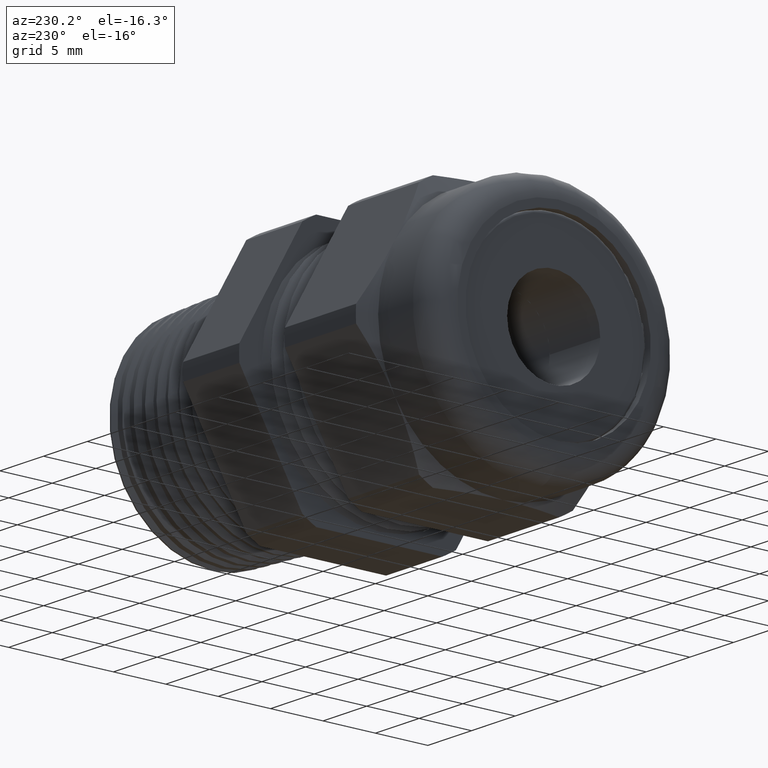
[diagram: clean part render]
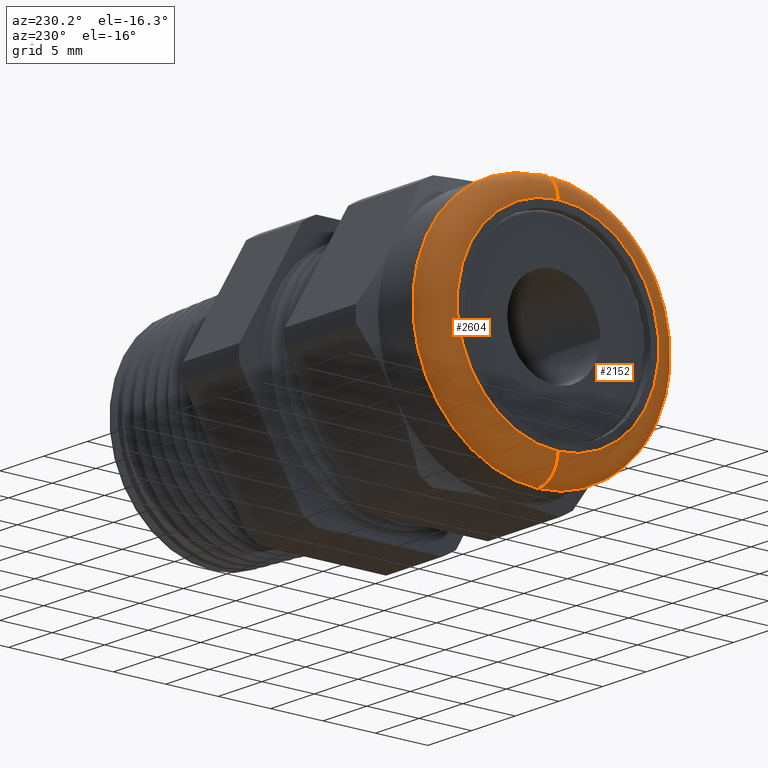
[diagram: same view with one multi-face feature highlighted, each face labeled with its STEP entity id]
A machine part, auxiliary view. The highlighted faces form ONE feature: a constant-radius fillet chain: 2 tangent blend faces with common blend radius 2.3216 mm. The faces share edges in the B-rep.
Their STEP definitions:
[1] entity #2152 (Torus):
#53 = EDGE_CURVE ( 'NONE', #3774, #2603, #2917, .T. ) ;
#1001 = CARTESIAN_POINT ( 'NONE',  ( -1.060000000000000100, 5.196176368782216900E-017, 0.3785999999999997700 ) ) ;
#1701 = CARTESIAN_POINT ( 'NONE',  ( -0.9686000000000000200, 0.0000000000000000000, 0.4699999999999997500 ) ) ;
#1702 = CARTESIAN_POINT ( 'NONE',  ( -0.9686000000000000200, 5.755839955992557200E-017, -0.4699999999999997500 ) ) ;
#1738 = DIRECTION ( 'NONE',  ( 0.0000000000000000000, 1.224646799147353000E-016, 1.000000000000000000 ) ) ;
#1739 = DIRECTION ( 'NONE',  ( 0.0000000000000000000, 1.000000000000000000, -1.224646799147353200E-016 ) ) ;
#1740 = CARTESIAN_POINT ( 'NONE',  ( -0.9686000000000000200, 4.636512781571876600E-017, 0.3785999999999997700 ) ) ;
#1741 = AXIS2_PLACEMENT_3D ( 'NONE', #1740, #1739, #1738 ) ;
#1742 = CIRCLE ( 'NONE', #1741, 0.09140000000000000900 ) ;
#1743 = CARTESIAN_POINT ( 'NONE',  ( -1.060000000000000100, 0.0000000000000000000, -0.3785999999999997700 ) ) ;
#1749 = DIRECTION ( 'NONE',  ( 0.0000000000000000000, 0.0000000000000000000, -1.000000000000000000 ) ) ;
#1750 = DIRECTION ( 'NONE',  ( 0.0000000000000000000, -1.000000000000000000, 0.0000000000000000000 ) ) ;
#1751 = CARTESIAN_POINT ( 'NONE',  ( -0.9686000000000000200, 0.0000000000000000000, -0.3785999999999997700 ) ) ;
#1752 = AXIS2_PLACEMENT_3D ( 'NONE', #1751, #1750, #1749 ) ;
#1753 = CIRCLE ( 'NONE', #1752, 0.09140000000000000900 ) ;
#2062 = EDGE_CURVE ( 'NONE', #3762, #3761, #3401, .T. ) ;
#2138 = ORIENTED_EDGE ( 'NONE', *, *, #3769, .T. ) ;
#2139 = EDGE_LOOP ( 'NONE', ( #2143, #2140, #2138, #2142 ) ) ;
#2140 = ORIENTED_EDGE ( 'NONE', *, *, #53, .F. ) ;
#2142 = ORIENTED_EDGE ( 'NONE', *, *, #2062, .F. ) ;
#2143 = ORIENTED_EDGE ( 'NONE', *, *, #3775, .F. ) ;
#2152 = ADVANCED_FACE ( 'NONE', ( #3550 ), #3549, .T. ) ;
#2603 = VERTEX_POINT ( 'NONE', #1001 ) ;
#2855 = CARTESIAN_POINT ( 'NONE',  ( -1.060000000000000100, 0.0000000000000000000, 0.0000000000000000000 ) ) ;
#2914 = DIRECTION ( 'NONE',  ( 0.0000000000000000000, 0.0000000000000000000, -1.000000000000000000 ) ) ;
#2915 = DIRECTION ( 'NONE',  ( -1.000000000000000000, 0.0000000000000000000, 0.0000000000000000000 ) ) ;
#2916 = AXIS2_PLACEMENT_3D ( 'NONE', #2855, #2915, #2914 ) ;
#2917 = CIRCLE ( 'NONE', #2916, 0.3785999999999997700 ) ;
#3397 = DIRECTION ( 'NONE',  ( 0.0000000000000000000, 0.0000000000000000000, -1.000000000000000000 ) ) ;
#3398 = DIRECTION ( 'NONE',  ( 1.000000000000000000, 0.0000000000000000000, 0.0000000000000000000 ) ) ;
#3399 = CARTESIAN_POINT ( 'NONE',  ( -0.9686000000000000200, 0.0000000000000000000, 0.0000000000000000000 ) ) ;
#3400 = AXIS2_PLACEMENT_3D ( 'NONE', #3399, #3398, #3397 ) ;
#3401 = CIRCLE ( 'NONE', #3400, 0.4699999999999997500 ) ;
#3545 = DIRECTION ( 'NONE',  ( 0.0000000000000000000, 0.0000000000000000000, -1.000000000000000000 ) ) ;
#3546 = DIRECTION ( 'NONE',  ( 1.000000000000000000, 0.0000000000000000000, 0.0000000000000000000 ) ) ;
#3547 = CARTESIAN_POINT ( 'NONE',  ( -0.9686000000000000200, 0.0000000000000000000, 0.0000000000000000000 ) ) ;
#3548 = AXIS2_PLACEMENT_3D ( 'NONE', #3547, #3546, #3545 ) ;
#3549 = TOROIDAL_SURFACE ( 'NONE', #3548, 0.3785999999999997700, 0.09139999999999999500 ) ;
#3550 = FACE_OUTER_BOUND ( 'NONE', #2139, .T. ) ;
#3761 = VERTEX_POINT ( 'NONE', #1702 ) ;
#3762 = VERTEX_POINT ( 'NONE', #1701 ) ;
#3769 = EDGE_CURVE ( 'NONE', #3774, #3761, #1753, .T. ) ;
#3774 = VERTEX_POINT ( 'NONE', #1743 ) ;
#3775 = EDGE_CURVE ( 'NONE', #2603, #3762, #1742, .T. ) ;
[2] entity #2604 (Torus):
#944 = DIRECTION ( 'NONE',  ( 0.0000000000000000000, 0.0000000000000000000, -1.000000000000000000 ) ) ;
#945 = DIRECTION ( 'NONE',  ( -1.000000000000000000, 0.0000000000000000000, 0.0000000000000000000 ) ) ;
#946 = CARTESIAN_POINT ( 'NONE',  ( -1.060000000000000100, 0.0000000000000000000, 0.0000000000000000000 ) ) ;
#947 = AXIS2_PLACEMENT_3D ( 'NONE', #946, #945, #944 ) ;
#948 = CIRCLE ( 'NONE', #947, 0.3785999999999997700 ) ;
#995 = DIRECTION ( 'NONE',  ( 0.0000000000000000000, 0.0000000000000000000, -1.000000000000000000 ) ) ;
#996 = DIRECTION ( 'NONE',  ( 1.000000000000000000, 0.0000000000000000000, 0.0000000000000000000 ) ) ;
#997 = CARTESIAN_POINT ( 'NONE',  ( -0.9686000000000000200, 0.0000000000000000000, 0.0000000000000000000 ) ) ;
#998 = AXIS2_PLACEMENT_3D ( 'NONE', #997, #996, #995 ) ;
#999 = TOROIDAL_SURFACE ( 'NONE', #998, 0.3785999999999997700, 0.09139999999999999500 ) ;
#1000 = FACE_OUTER_BOUND ( 'NONE', #1989, .T. ) ;
#1001 = CARTESIAN_POINT ( 'NONE',  ( -1.060000000000000100, 5.196176368782216900E-017, 0.3785999999999997700 ) ) ;
#1701 = CARTESIAN_POINT ( 'NONE',  ( -0.9686000000000000200, 0.0000000000000000000, 0.4699999999999997500 ) ) ;
#1702 = CARTESIAN_POINT ( 'NONE',  ( -0.9686000000000000200, 5.755839955992557200E-017, -0.4699999999999997500 ) ) ;
#1738 = DIRECTION ( 'NONE',  ( 0.0000000000000000000, 1.224646799147353000E-016, 1.000000000000000000 ) ) ;
#1739 = DIRECTION ( 'NONE',  ( 0.0000000000000000000, 1.000000000000000000, -1.224646799147353200E-016 ) ) ;
#1740 = CARTESIAN_POINT ( 'NONE',  ( -0.9686000000000000200, 4.636512781571876600E-017, 0.3785999999999997700 ) ) ;
#1741 = AXIS2_PLACEMENT_3D ( 'NONE', #1740, #1739, #1738 ) ;
#1742 = CIRCLE ( 'NONE', #1741, 0.09140000000000000900 ) ;
#1743 = CARTESIAN_POINT ( 'NONE',  ( -1.060000000000000100, 0.0000000000000000000, -0.3785999999999997700 ) ) ;
#1744 = DIRECTION ( 'NONE',  ( 0.0000000000000000000, 0.0000000000000000000, -1.000000000000000000 ) ) ;
#1745 = DIRECTION ( 'NONE',  ( 1.000000000000000000, 0.0000000000000000000, 0.0000000000000000000 ) ) ;
#1746 = CARTESIAN_POINT ( 'NONE',  ( -0.9686000000000000200, 0.0000000000000000000, 0.0000000000000000000 ) ) ;
#1747 = AXIS2_PLACEMENT_3D ( 'NONE', #1746, #1745, #1744 ) ;
#1748 = CIRCLE ( 'NONE', #1747, 0.4699999999999997500 ) ;
#1749 = DIRECTION ( 'NONE',  ( 0.0000000000000000000, 0.0000000000000000000, -1.000000000000000000 ) ) ;
#1750 = DIRECTION ( 'NONE',  ( 0.0000000000000000000, -1.000000000000000000, 0.0000000000000000000 ) ) ;
#1751 = CARTESIAN_POINT ( 'NONE',  ( -0.9686000000000000200, 0.0000000000000000000, -0.3785999999999997700 ) ) ;
#1752 = AXIS2_PLACEMENT_3D ( 'NONE', #1751, #1750, #1749 ) ;
#1753 = CIRCLE ( 'NONE', #1752, 0.09140000000000000900 ) ;
#1989 = EDGE_LOOP ( 'NONE', ( #2600, #3773, #3772, #3770 ) ) ;
#2600 = ORIENTED_EDGE ( 'NONE', *, *, #2601, .F. ) ;
#2601 = EDGE_CURVE ( 'NONE', #2603, #3774, #948, .T. ) ;
#2603 = VERTEX_POINT ( 'NONE', #1001 ) ;
#2604 = ADVANCED_FACE ( 'NONE', ( #1000 ), #999, .T. ) ;
#3761 = VERTEX_POINT ( 'NONE', #1702 ) ;
#3762 = VERTEX_POINT ( 'NONE', #1701 ) ;
#3769 = EDGE_CURVE ( 'NONE', #3774, #3761, #1753, .T. ) ;
#3770 = ORIENTED_EDGE ( 'NONE', *, *, #3769, .F. ) ;
#3771 = EDGE_CURVE ( 'NONE', #3761, #3762, #1748, .T. ) ;
#3772 = ORIENTED_EDGE ( 'NONE', *, *, #3771, .F. ) ;
#3773 = ORIENTED_EDGE ( 'NONE', *, *, #3775, .T. ) ;
#3774 = VERTEX_POINT ( 'NONE', #1743 ) ;
#3775 = EDGE_CURVE ( 'NONE', #2603, #3762, #1742, .T. ) ;